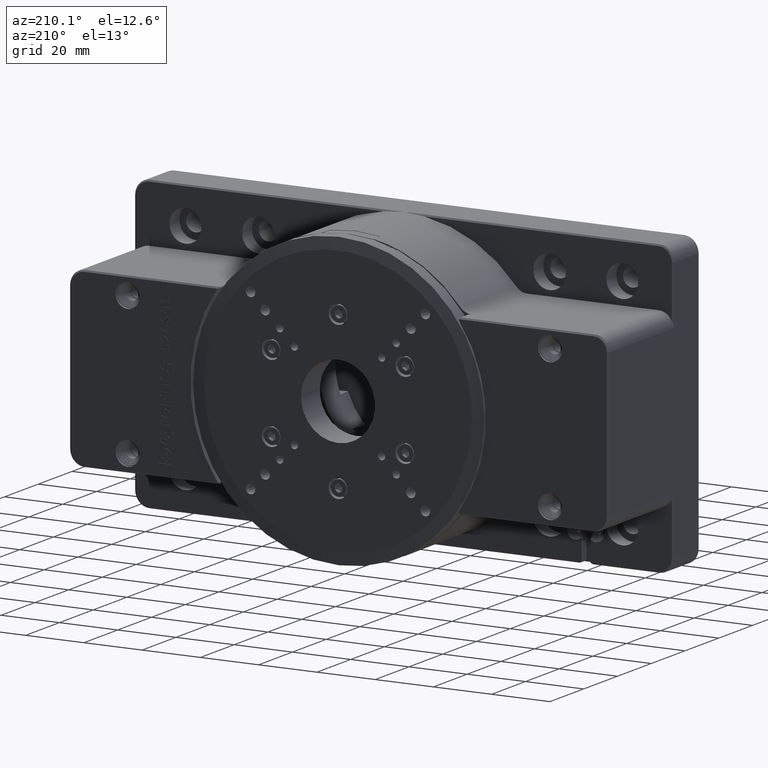
[diagram: clean part render]
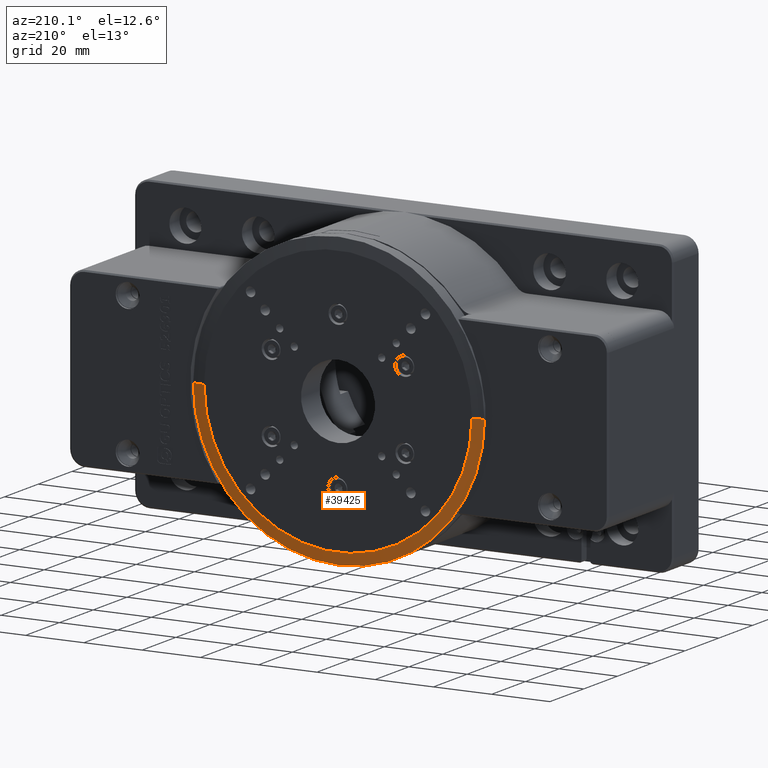
[diagram: same view with one face highlighted and labeled with its STEP entity id]
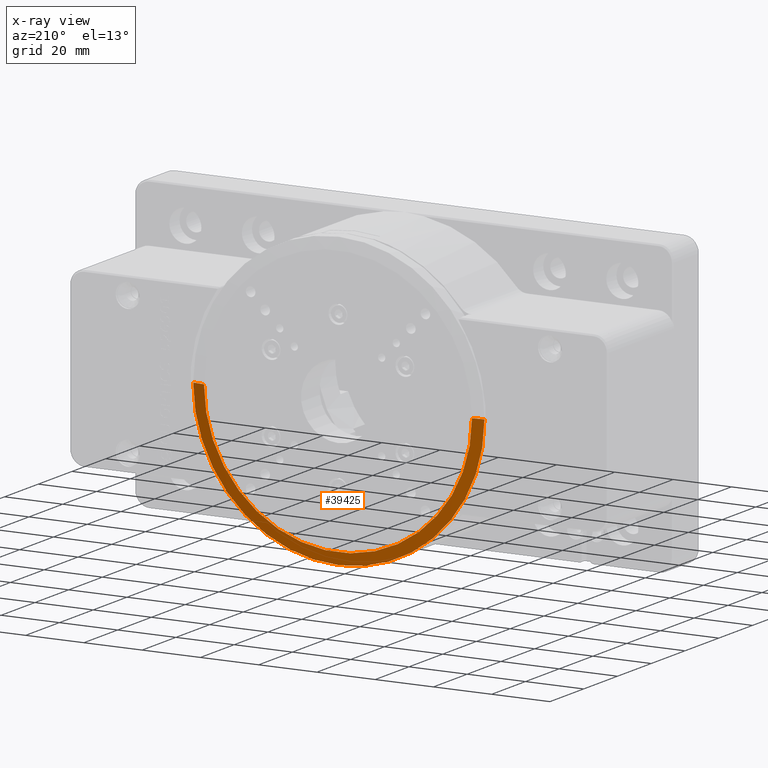
[diagram: x-ray of the same camera — body ghosted, the highlighted face saturated]
A machine part, auxiliary view. The second image highlights one B-rep face of the part: STEP entity #39425.
The next image is the same camera in x-ray: the body ghosted, the highlighted face saturated — about 0% of this face is hidden behind the body in this view.
In plain terms, the highlighted conical surface has half-angle 82.875 deg.
Its self-contained STEP definition (entity closure, byte-faithful):
#85 = CARTESIAN_POINT ( 'NONE',  ( -49.99999990997844900, 23.49999885345742700, 4.081770350424844800E-014 ) ) ;
#1512 = ORIENTED_EDGE ( 'NONE', *, *, #29062, .T. ) ;
#6403 = DIRECTION ( 'NONE',  ( 3.771138252988939500E-017, 1.000000000000000000, -0.0000000000000000000 ) ) ;
#7531 = EDGE_CURVE ( 'NONE', #33839, #51585, #19970, .T. ) ;
#8257 = DIRECTION ( 'NONE',  ( -6.938893916400229900E-017, -1.000000000000000000, -3.469446958200115000E-017 ) ) ;
#9275 = VERTEX_POINT ( 'NONE', #48751 ) ;
#10025 = EDGE_CURVE ( 'NONE', #33839, #9275, #30990, .T. ) ;
#11999 = EDGE_LOOP ( 'NONE', ( #29278, #22132, #14247, #36986, #1512 ) ) ;
#13617 = AXIS2_PLACEMENT_3D ( 'NONE', #31540, #6403, #35655 ) ;
#14098 = DIRECTION ( 'NONE',  ( 3.771138252988939500E-017, 1.000000000000000000, -0.0000000000000000000 ) ) ;
#14247 = ORIENTED_EDGE ( 'NONE', *, *, #47090, .T. ) ;
#15964 = FACE_OUTER_BOUND ( 'NONE', #11999, .T. ) ;
#18714 = AXIS2_PLACEMENT_3D ( 'NONE', #39006, #14098, #43145 ) ;
#19970 = LINE ( 'NONE', #44587, #31018 ) ;
#21570 = CARTESIAN_POINT ( 'NONE',  ( 49.99999990997842000, 23.49999885345742000, 3.469446951953614200E-014 ) ) ;
#22132 = ORIENTED_EDGE ( 'NONE', *, *, #10025, .T. ) ;
#25321 = DIRECTION ( 'NONE',  ( 1.000000000000000000, -6.938893916400229900E-017, 0.0000000000000000000 ) ) ;
#26162 = DIRECTION ( 'NONE',  ( 0.9922778738858419900, -0.1240347572118106200, -4.303320111196058600E-018 ) ) ;
#26973 = VERTEX_POINT ( 'NONE', #29664 ) ;
#28088 = AXIS2_PLACEMENT_3D ( 'NONE', #41569, #8257, #25321 ) ;
#29062 = EDGE_CURVE ( 'NONE', #26973, #51585, #50750, .T. ) ;
#29179 = LINE ( 'NONE', #50736, #38840 ) ;
#29278 = ORIENTED_EDGE ( 'NONE', *, *, #7531, .F. ) ;
#29664 = CARTESIAN_POINT ( 'NONE',  ( -1.697421666677782200E-026, 23.49999885345742400, -49.99999990997837100 ) ) ;
#30990 = CIRCLE ( 'NONE', #53635, 45.99999677458759400 ) ;
#31018 = VECTOR ( 'NONE', #47101, 1000.000000000000200 ) ;
#31540 = CARTESIAN_POINT ( 'NONE',  ( -1.885570938316662600E-017, 23.49999885345742400, 3.469446951953614200E-014 ) ) ;
#33199 = EDGE_CURVE ( 'NONE', #38966, #26973, #36082, .T. ) ;
#33839 = VERTEX_POINT ( 'NONE', #53446 ) ;
#34800 = DIRECTION ( 'NONE',  ( 1.000000000000000000, -7.542276511354644100E-017, 0.0000000000000000000 ) ) ;
#34806 = DIRECTION ( 'NONE',  ( -6.938893916400229900E-017, -1.000000000000000000, -3.469446958200115000E-017 ) ) ;
#34850 = CARTESIAN_POINT ( 'NONE',  ( 3.469450320395840000E-017, 23.99999933800089400, 3.471181677113812200E-014 ) ) ;
#35655 = DIRECTION ( 'NONE',  ( 1.000000000000000000, 0.0000000000000000000, 0.0000000000000000000 ) ) ;
#36082 = CIRCLE ( 'NONE', #18714, 49.99999990997840600 ) ;
#36986 = ORIENTED_EDGE ( 'NONE', *, *, #33199, .T. ) ;
#38840 = VECTOR ( 'NONE', #26162, 1000.000000000000200 ) ;
#38966 = VERTEX_POINT ( 'NONE', #21570 ) ;
#39006 = CARTESIAN_POINT ( 'NONE',  ( -1.885570938316662600E-017, 23.49999885345742400, 3.469446951953614200E-014 ) ) ;
#39425 = ADVANCED_FACE ( 'NONE', ( #15964 ), #46414, .T. ) ;
#41569 = CARTESIAN_POINT ( 'NONE',  ( 0.0000000000000000000, 23.49999885345742400, 3.469446951953614200E-014 ) ) ;
#43145 = DIRECTION ( 'NONE',  ( 1.000000000000000000, 0.0000000000000000000, 0.0000000000000000000 ) ) ;
#44587 = CARTESIAN_POINT ( 'NONE',  ( -49.99999990997843500, 23.49999885345742700, 4.081770350424844800E-014 ) ) ;
#46414 = CONICAL_SURFACE ( 'NONE', #28088, 49.99999990997843500, 1.446441309449479000 ) ;
#47090 = EDGE_CURVE ( 'NONE', #9275, #38966, #29179, .T. ) ;
#47101 = DIRECTION ( 'NONE',  ( -0.9922778738858419900, -0.1240347572118104800, 1.172156721007077000E-016 ) ) ;
#48751 = CARTESIAN_POINT ( 'NONE',  ( 45.99999677458759400, 23.99999933800089000, 3.471181677113812200E-014 ) ) ;
#50736 = CARTESIAN_POINT ( 'NONE',  ( 49.99999990997843500, 23.49999885345742000, 3.469446951953614200E-014 ) ) ;
#50750 = CIRCLE ( 'NONE', #13617, 49.99999990997840600 ) ;
#51585 = VERTEX_POINT ( 'NONE', #85 ) ;
#53446 = CARTESIAN_POINT ( 'NONE',  ( -45.99999677458759400, 23.99999933800089700, 4.058144757823264600E-014 ) ) ;
#53635 = AXIS2_PLACEMENT_3D ( 'NONE', #34850, #34806, #34800 ) ;